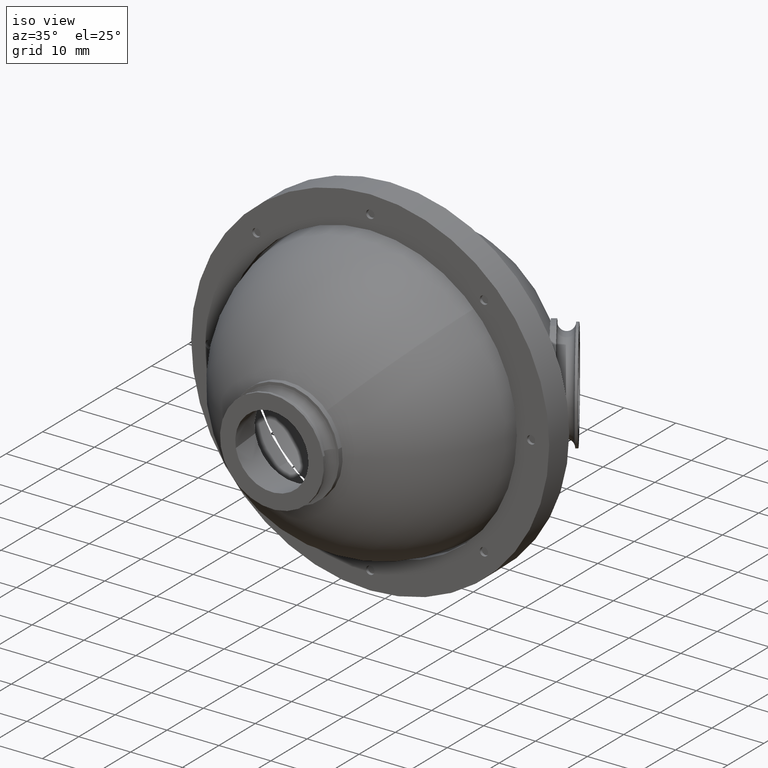
[diagram: clean part render]
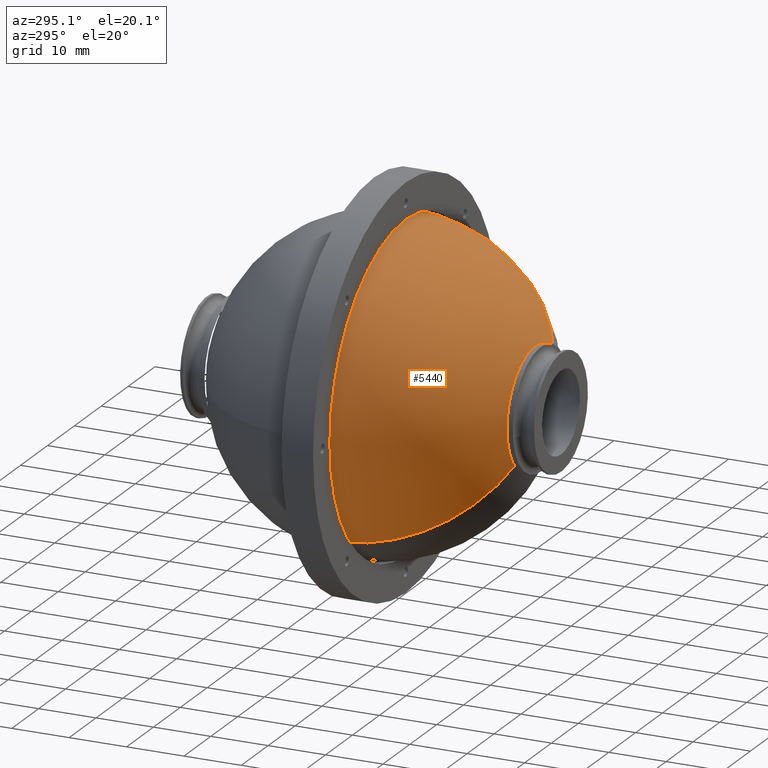
[diagram: tour spotlight — one face highlighted and labeled with its STEP entity id]
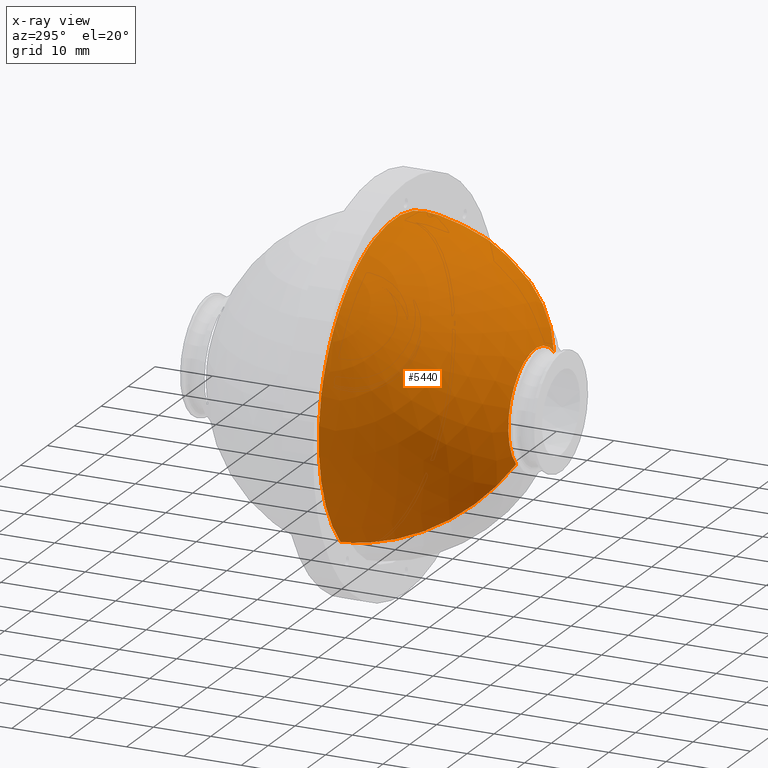
[diagram: x-ray of the same camera — body ghosted, this tour face saturated]
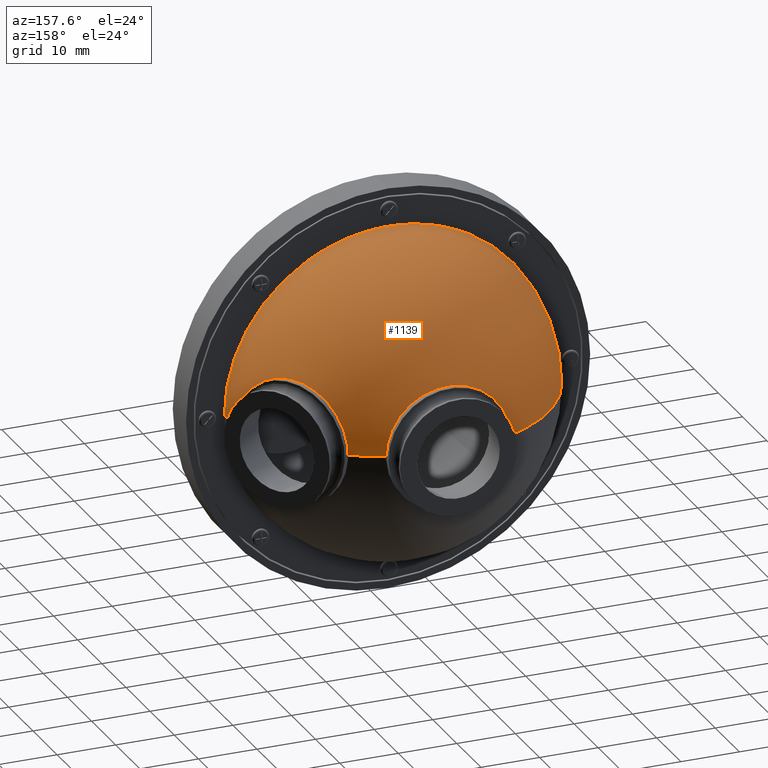
[diagram: tour spotlight — one face highlighted and labeled with its STEP entity id]
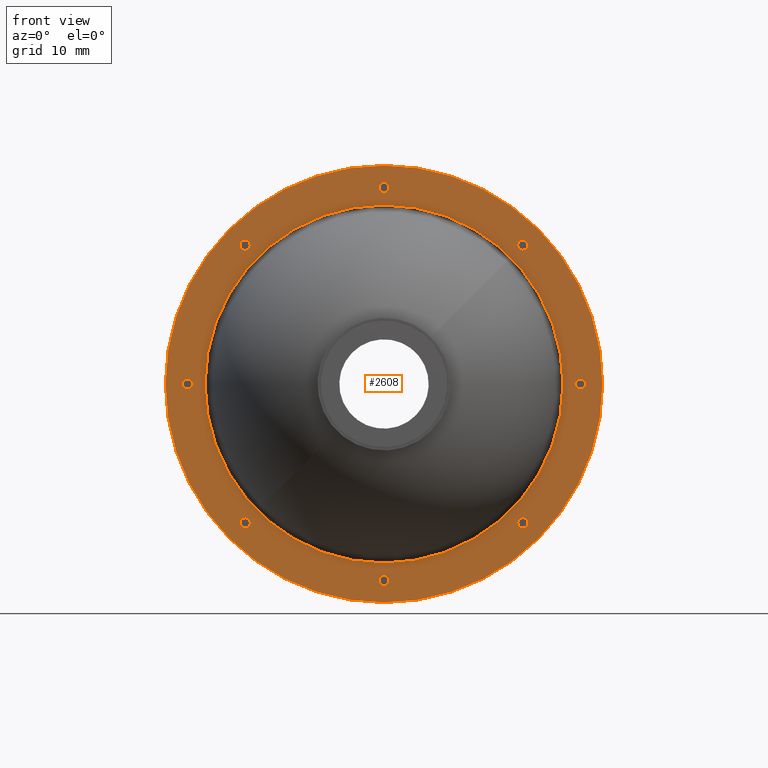
[diagram: tour spotlight — one face highlighted and labeled with its STEP entity id]
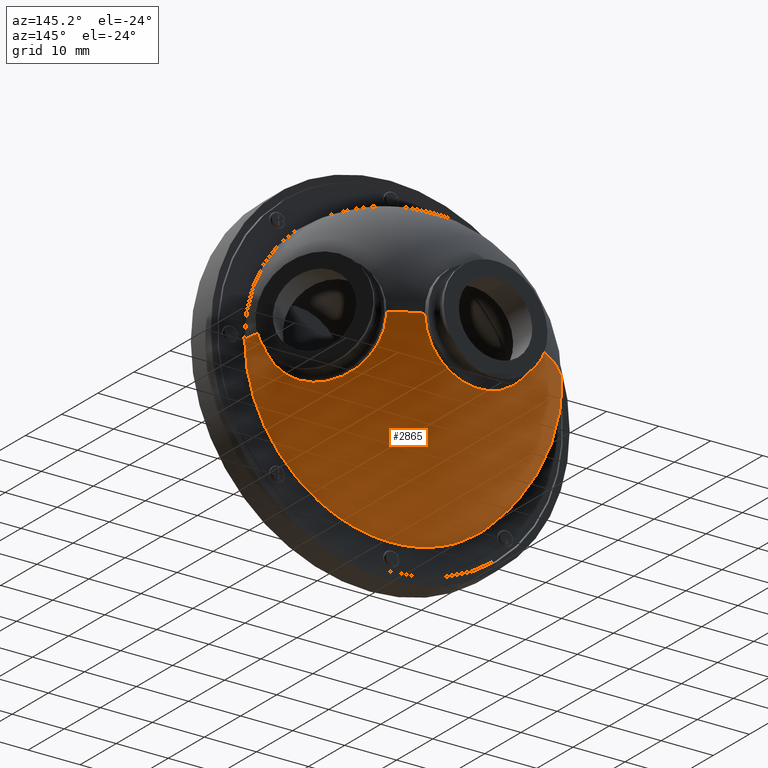
[diagram: tour spotlight — one face highlighted and labeled with its STEP entity id]
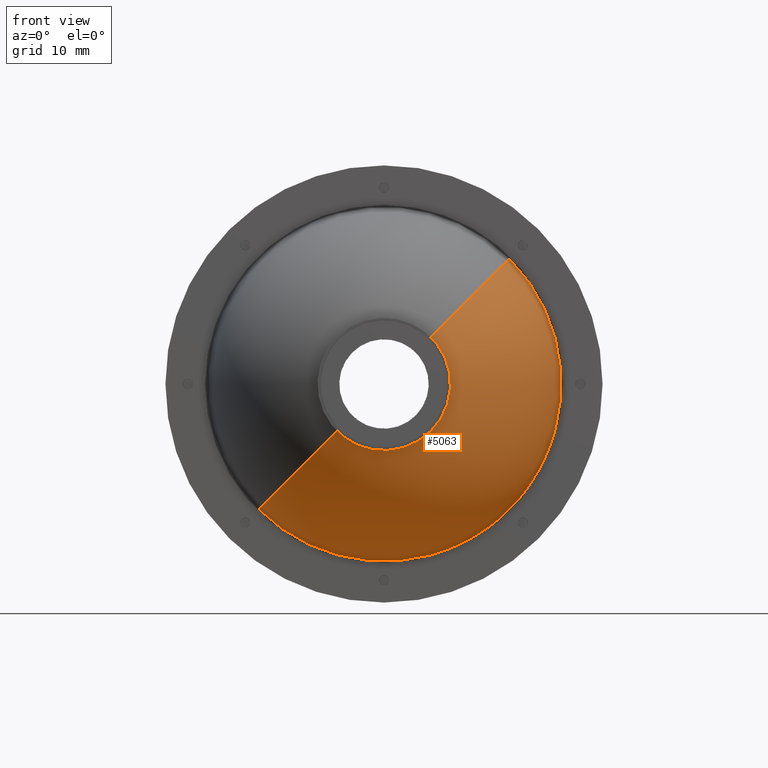
[diagram: tour spotlight — one face highlighted and labeled with its STEP entity id]
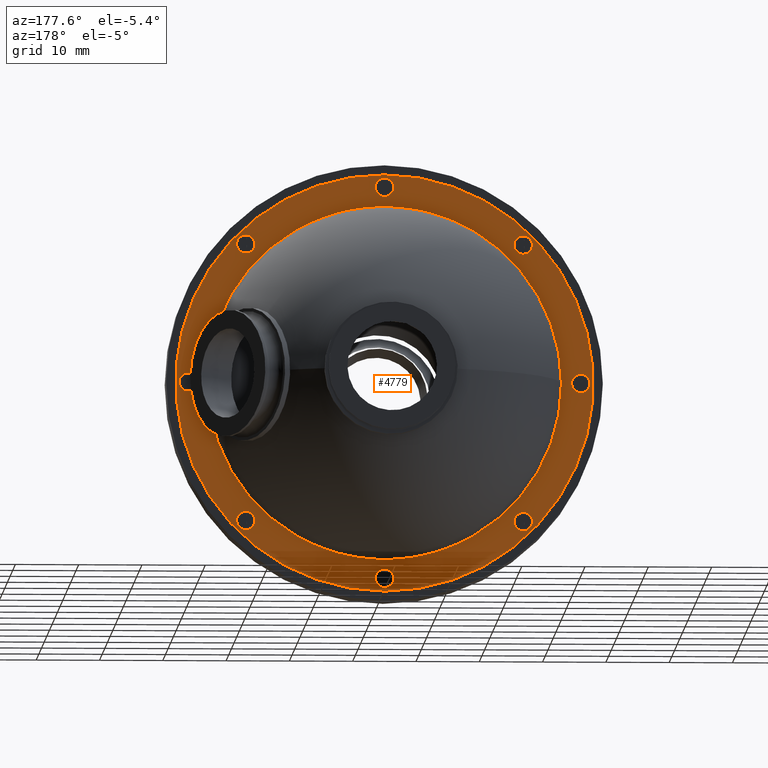
[diagram: tour spotlight — one face highlighted and labeled with its STEP entity id]
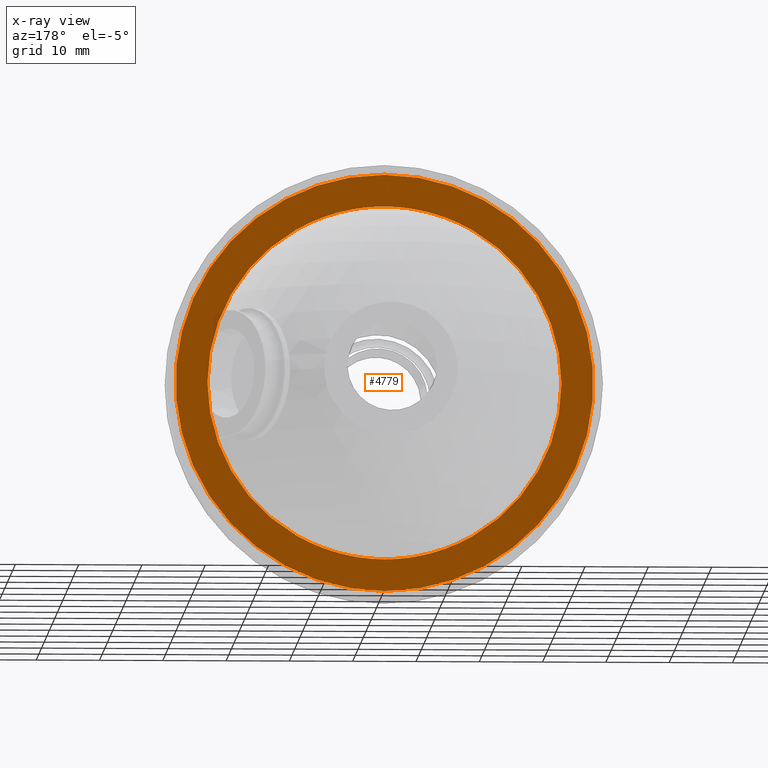
[diagram: x-ray of the same camera — body ghosted, this tour face saturated]
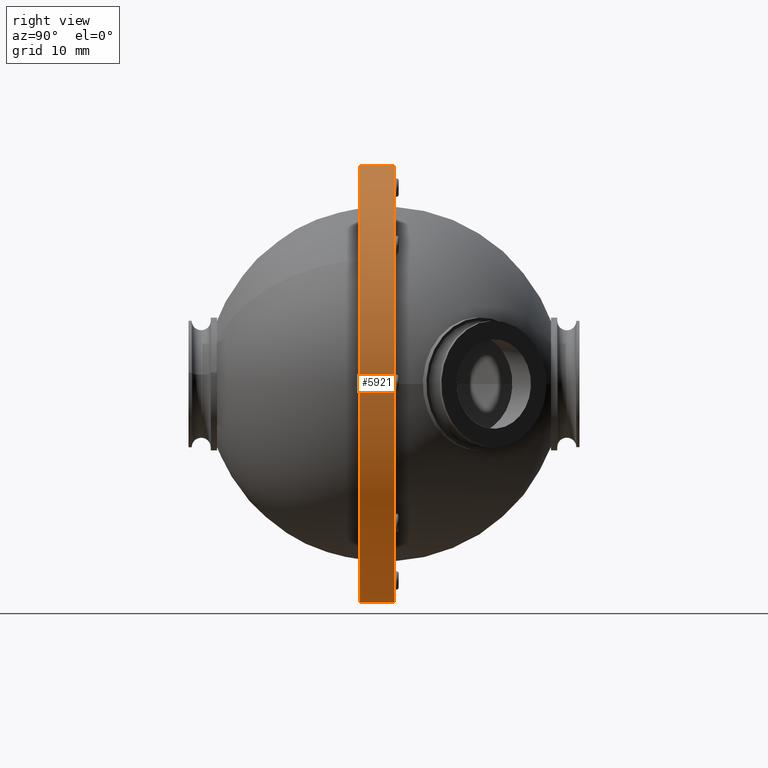
[diagram: tour spotlight — one face highlighted and labeled with its STEP entity id]
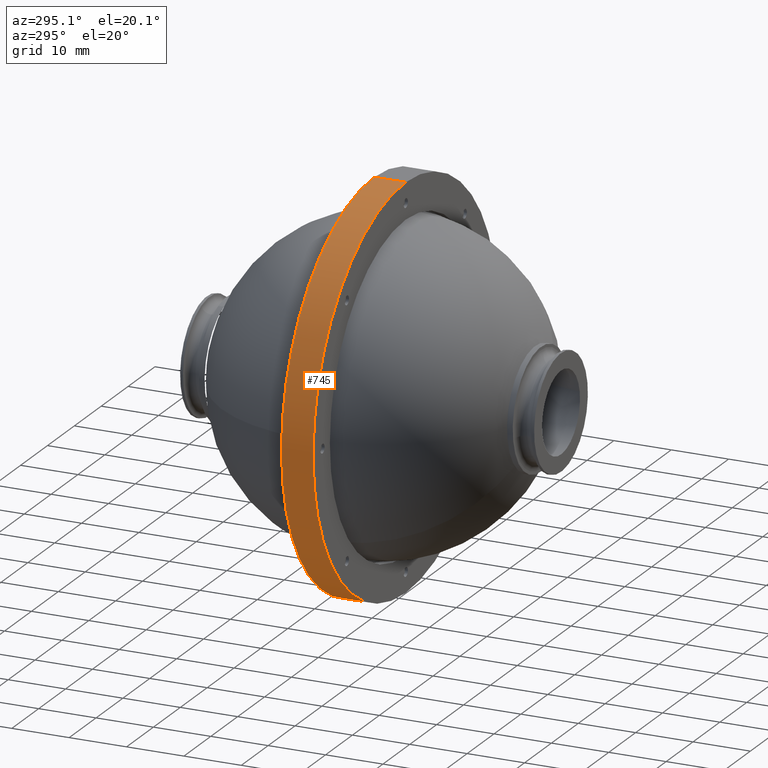
[diagram: tour spotlight — one face highlighted and labeled with its STEP entity id]
A machine part: a face-by-face anatomy tour. The part has 182 B-rep faces; the first image is the clean iso view, then the 8 largest visible faces are spotlighted one at a time (largest first), each with its STEP entity span.

Face 1 — auxiliary view, entity #5440. An x-ray twin of the same camera follows (body ghosted, this face saturated) — the face is partly hidden behind the body. In plain terms, the highlighted spherical surface has radius 28 mm.
Definition (entity closure, byte-faithful):
#136 = EDGE_CURVE ( 'NONE', #1380, #5719, #6012, .T. ) ;
#667 = DIRECTION ( 'NONE',  ( 0.7071067811865585639, 0.000000000000000000, -0.7071067811865364705 ) ) ;
#694 = VERTEX_POINT ( 'NONE', #4148 ) ;
#698 = DIRECTION ( 'NONE',  ( 0.7071067811865587860, 0.000000000000000000, -0.7071067811865364705 ) ) ;
#704 = DIRECTION ( 'NONE',  ( 0.7071067811865364705, 0.000000000000000000, 0.7071067811865585639 ) ) ;
#1380 = VERTEX_POINT ( 'NONE', #3435 ) ;
#1485 = CARTESIAN_POINT ( 'NONE',  ( 1.412951137742937346, -44.46425954842823813, -7.071067811865594521 ) ) ;
#1643 = AXIS2_PLACEMENT_3D ( 'NONE', #2687, #698, #5110 ) ;
#1719 = FACE_OUTER_BOUND ( 'NONE', #3733, .T. ) ;
#1833 = CARTESIAN_POINT ( 'NONE',  ( -11.28653997015892685, -19.81086588718419961, -19.77055891976786128 ) ) ;
#2301 = EDGE_CURVE ( 'NONE', #5719, #2799, #3103, .T. ) ;
#2371 = ORIENTED_EDGE ( 'NONE', *, *, #4375, .T. ) ;
#2550 = CARTESIAN_POINT ( 'NONE',  ( 8.484018949608307381, -44.46425954842823813, 0.000000000000000000 ) ) ;
#2687 = CARTESIAN_POINT ( 'NONE',  ( 8.484018949608307381, -18.31086588718419605, 0.000000000000000000 ) ) ;
#2799 = VERTEX_POINT ( 'NONE', #1833 ) ;
#2983 = ORIENTED_EDGE ( 'NONE', *, *, #2301, .F. ) ;
#3011 = DIRECTION ( 'NONE',  ( -0.7071067811865585639, 0.000000000000000000, 0.7071067811865364705 ) ) ;
#3103 = CIRCLE ( 'NONE', #1643, 28.00000000000000355 ) ;
#3181 = AXIS2_PLACEMENT_3D ( 'NONE', #2550, #5540, #3011 ) ;
#3182 = SPHERICAL_SURFACE ( 'NONE', #4537, 28.00000000000000000 ) ;
#3435 = CARTESIAN_POINT ( 'NONE',  ( 15.55508676147367986, -44.46425954842823813, 7.071067811865592745 ) ) ;
#3622 = CARTESIAN_POINT ( 'NONE',  ( 8.484018949608307381, -18.31086588718419605, 0.000000000000000000 ) ) ;
#3733 = EDGE_LOOP ( 'NONE', ( #2983, #6061, #2371, #6111 ) ) ;
#4089 = CARTESIAN_POINT ( 'NONE',  ( 8.484018949608307381, -19.81086588718419961, 0.000000000000000000 ) ) ;
#4120 = DIRECTION ( 'NONE',  ( -0.000000000000000000, -1.000000000000000000, -0.000000000000000000 ) ) ;
#4148 = CARTESIAN_POINT ( 'NONE',  ( 28.25457786937554516, -19.81086588718419961, 19.77055891976785773 ) ) ;
#4375 = EDGE_CURVE ( 'NONE', #1380, #694, #5183, .T. ) ;
#4537 = AXIS2_PLACEMENT_3D ( 'NONE', #5185, #667, #704 ) ;
#5078 = DIRECTION ( 'NONE',  ( -0.7071067811865585639, 0.000000000000000000, 0.7071067811865364705 ) ) ;
#5110 = DIRECTION ( 'NONE',  ( -0.7071067811865363595, 0.000000000000000000, -0.7071067811865586750 ) ) ;
#5183 = CIRCLE ( 'NONE', #6023, 28.00000000000000355 ) ;
#5185 = CARTESIAN_POINT ( 'NONE',  ( 8.484018949608307381, -18.31086588718419605, 0.000000000000000000 ) ) ;
#5440 = ADVANCED_FACE ( 'NONE', ( #1719 ), #3182, .T. ) ;
#5540 = DIRECTION ( 'NONE',  ( 0.000000000000000000, -1.000000000000000000, -0.000000000000000000 ) ) ;
#5624 = DIRECTION ( 'NONE',  ( -0.7071067811865586750, -0.000000000000000000, 0.7071067811865365815 ) ) ;
#5689 = DIRECTION ( 'NONE',  ( 0.7071067811865364705, 0.000000000000000000, 0.7071067811865585639 ) ) ;
#5719 = VERTEX_POINT ( 'NONE', #1485 ) ;
#5839 = EDGE_CURVE ( 'NONE', #694, #2799, #5850, .T. ) ;
#5850 = CIRCLE ( 'NONE', #6367, 27.95979256003163371 ) ;
#6012 = CIRCLE ( 'NONE', #3181, 10.00000000000000178 ) ;
#6023 = AXIS2_PLACEMENT_3D ( 'NONE', #3622, #5624, #5689 ) ;
#6061 = ORIENTED_EDGE ( 'NONE', *, *, #136, .F. ) ;
#6111 = ORIENTED_EDGE ( 'NONE', *, *, #5839, .T. ) ;
#6367 = AXIS2_PLACEMENT_3D ( 'NONE', #4089, #4120, #5078 ) ;

Face 2 — auxiliary view, entity #1139. In plain terms, the highlighted spherical surface has radius 28 mm.
Definition (entity closure, byte-faithful):
#87 = DIRECTION ( 'NONE',  ( 0.000000000000000000, 0.000000000000000000, -1.000000000000000000 ) ) ;
#105 = VERTEX_POINT ( 'NONE', #4702 ) ;
#173 = CARTESIAN_POINT ( 'NONE',  ( -1.515981050391789209, 8.242527774059805523, 2.324366922747028344E-15 ) ) ;
#213 = DIRECTION ( 'NONE',  ( 1.000000000000000000, 3.816391647148976397E-15, 0.000000000000000000 ) ) ;
#344 = VERTEX_POINT ( 'NONE', #173 ) ;
#420 = AXIS2_PLACEMENT_3D ( 'NONE', #5970, #5546, #5046 ) ;
#440 = CARTESIAN_POINT ( 'NONE',  ( 8.484018949608307381, -17.91086588718419748, 0.000000000000000000 ) ) ;
#624 = AXIS2_PLACEMENT_3D ( 'NONE', #2069, #6070, #1097 ) ;
#717 = CIRCLE ( 'NONE', #4372, 9.999999999999998224 ) ;
#821 = CARTESIAN_POINT ( 'NONE',  ( 36.44381150963993576, -16.41086588718419748, 0.000000000000000000 ) ) ;
#910 = CIRCLE ( 'NONE', #5721, 28.00000000000000000 ) ;
#934 = CIRCLE ( 'NONE', #624, 28.00000000000000000 ) ;
#1033 = CARTESIAN_POINT ( 'NONE',  ( 8.484018949608307381, -17.91086588718419748, 0.000000000000000000 ) ) ;
#1088 = VERTEX_POINT ( 'NONE', #2686 ) ;
#1097 = DIRECTION ( 'NONE',  ( 1.000000000000000000, 0.000000000000000000, -1.224646799147353207E-16 ) ) ;
#1139 = ADVANCED_FACE ( 'NONE', ( #5605 ), #1224, .T. ) ;
#1224 = SPHERICAL_SURFACE ( 'NONE', #3484, 28.00000000000000000 ) ;
#1592 = DIRECTION ( 'NONE',  ( -1.000000000000000000, 0.000000000000000000, 0.000000000000000000 ) ) ;
#1770 = EDGE_CURVE ( 'NONE', #2765, #2809, #3311, .T. ) ;
#2011 = EDGE_CURVE ( 'NONE', #1088, #6447, #910, .T. ) ;
#2069 = CARTESIAN_POINT ( 'NONE',  ( 8.484018949608307381, -17.91086588718419748, 0.000000000000000000 ) ) ;
#2070 = CIRCLE ( 'NONE', #2382, 27.95979256003163016 ) ;
#2271 = AXIS2_PLACEMENT_3D ( 'NONE', #1033, #87, #1592 ) ;
#2303 = DIRECTION ( 'NONE',  ( -1.000000000000000000, 0.000000000000000000, 0.000000000000000000 ) ) ;
#2382 = AXIS2_PLACEMENT_3D ( 'NONE', #2425, #4520, #2457 ) ;
#2399 = CIRCLE ( 'NONE', #420, 10.00000000000000000 ) ;
#2425 = CARTESIAN_POINT ( 'NONE',  ( 8.484018949608307381, -16.41086588718419748, 0.000000000000000000 ) ) ;
#2426 = DIRECTION ( 'NONE',  ( 0.000000000000000000, 0.000000000000000000, -1.000000000000000000 ) ) ;
#2457 = DIRECTION ( 'NONE',  ( 0.000000000000000000, 0.000000000000000000, -1.000000000000000000 ) ) ;
#2686 = CARTESIAN_POINT ( 'NONE',  ( 35.75809397930994038, -11.57644947569009020, 0.000000000000000000 ) ) ;
#2765 = VERTEX_POINT ( 'NONE', #2902 ) ;
#2809 = VERTEX_POINT ( 'NONE', #5866 ) ;
#2828 = ORIENTED_EDGE ( 'NONE', *, *, #5745, .T. ) ;
#2902 = CARTESIAN_POINT ( 'NONE',  ( 18.48401894960820968, 8.242527774059881907, 0.000000000000000000 ) ) ;
#3310 = EDGE_CURVE ( 'NONE', #344, #105, #934, .T. ) ;
#3311 = CIRCLE ( 'NONE', #2271, 28.00000000000000000 ) ;
#3393 = EDGE_CURVE ( 'NONE', #2809, #1088, #2399, .T. ) ;
#3484 = AXIS2_PLACEMENT_3D ( 'NONE', #3739, #4121, #5108 ) ;
#3606 = DIRECTION ( 'NONE',  ( 3.736410698672603652E-15, -1.000000000000000000, -0.000000000000000000 ) ) ;
#3635 = CARTESIAN_POINT ( 'NONE',  ( 8.484018949608211457, 8.242527774059842827, 0.000000000000000000 ) ) ;
#3739 = CARTESIAN_POINT ( 'NONE',  ( 8.484018949608307381, -17.91086588718419748, 0.000000000000000000 ) ) ;
#4121 = DIRECTION ( 'NONE',  ( 0.000000000000000000, 0.000000000000000000, 1.000000000000000000 ) ) ;
#4372 = AXIS2_PLACEMENT_3D ( 'NONE', #3635, #3606, #213 ) ;
#4520 = DIRECTION ( 'NONE',  ( -0.000000000000000000, 1.000000000000000000, -0.000000000000000000 ) ) ;
#4598 = ORIENTED_EDGE ( 'NONE', *, *, #2011, .F. ) ;
#4702 = CARTESIAN_POINT ( 'NONE',  ( -19.47577361042331745, -16.41086588718419748, 3.424087046346671680E-15 ) ) ;
#4822 = ORIENTED_EDGE ( 'NONE', *, *, #5877, .T. ) ;
#5006 = ORIENTED_EDGE ( 'NONE', *, *, #1770, .F. ) ;
#5046 = DIRECTION ( 'NONE',  ( 0.5591929034707482371, -0.8290375725550406250, 0.000000000000000000 ) ) ;
#5108 = DIRECTION ( 'NONE',  ( 1.000000000000000000, 0.000000000000000000, 0.000000000000000000 ) ) ;
#5208 = ORIENTED_EDGE ( 'NONE', *, *, #3393, .F. ) ;
#5350 = EDGE_LOOP ( 'NONE', ( #4822, #5876, #2828, #4598, #5208, #5006 ) ) ;
#5546 = DIRECTION ( 'NONE',  ( 0.8290375725550408470, 0.5591929034707481261, 0.000000000000000000 ) ) ;
#5605 = FACE_OUTER_BOUND ( 'NONE', #5350, .T. ) ;
#5721 = AXIS2_PLACEMENT_3D ( 'NONE', #440, #2426, #2303 ) ;
#5745 = EDGE_CURVE ( 'NONE', #105, #6447, #2070, .T. ) ;
#5866 = CARTESIAN_POINT ( 'NONE',  ( 24.57423590989497697, 5.004301975410723635, 0.000000000000000000 ) ) ;
#5876 = ORIENTED_EDGE ( 'NONE', *, *, #3310, .T. ) ;
#5877 = EDGE_CURVE ( 'NONE', #2765, #344, #717, .T. ) ;
#5970 = CARTESIAN_POINT ( 'NONE',  ( 30.16616494460246045, -3.286073750139683280, 0.000000000000000000 ) ) ;
#6070 = DIRECTION ( 'NONE',  ( 1.224646799147353207E-16, -0.000000000000000000, 1.000000000000000000 ) ) ;
#6447 = VERTEX_POINT ( 'NONE', #821 ) ;

Face 3 — front view, entity #2608. In plain terms, the highlighted planar face has unit normal (0, 1, 0).
Definition (entity closure, byte-faithful):
#9 = FACE_BOUND ( 'NONE', #3206, .T. ) ;
#99 = CIRCLE ( 'NONE', #2497, 0.7999999999999986011 ) ;
#115 = VERTEX_POINT ( 'NONE', #2803 ) ;
#134 = PLANE ( 'NONE',  #2800 ) ;
#148 = AXIS2_PLACEMENT_3D ( 'NONE', #5825, #1860, #4278 ) ;
#168 = DIRECTION ( 'NONE',  ( 0.000000000000000000, 1.000000000000000000, 0.000000000000000000 ) ) ;
#233 = CARTESIAN_POINT ( 'NONE',  ( -13.43629126717478250, -21.91086588718419748, 21.12031021678285825 ) ) ;
#266 = VERTEX_POINT ( 'NONE', #6195 ) ;
#267 = CARTESIAN_POINT ( 'NONE',  ( -22.51598105039169084, -21.91086588718419748, -2.164719683887816881E-13 ) ) ;
#273 = ORIENTED_EDGE ( 'NONE', *, *, #6121, .T. ) ;
#318 = EDGE_CURVE ( 'NONE', #2943, #2717, #5816, .T. ) ;
#329 = CARTESIAN_POINT ( 'NONE',  ( -22.51598105039169084, -21.91086588718419748, -2.164719683887816881E-13 ) ) ;
#339 = ORIENTED_EDGE ( 'NONE', *, *, #3278, .F. ) ;
#402 = VERTEX_POINT ( 'NONE', #6127 ) ;
#462 = FACE_BOUND ( 'NONE', #4297, .T. ) ;
#482 = EDGE_CURVE ( 'NONE', #979, #266, #1644, .T. ) ;
#607 = EDGE_CURVE ( 'NONE', #3018, #2976, #3936, .T. ) ;
#670 = DIRECTION ( 'NONE',  ( 0.000000000000000000, 0.000000000000000000, 1.000000000000000000 ) ) ;
#689 = CARTESIAN_POINT ( 'NONE',  ( 39.48401894960830560, -21.91086588718419748, 0.7999999999999986011 ) ) ;
#729 = CARTESIAN_POINT ( 'NONE',  ( 39.48401894960830560, -21.91086588718419748, 0.000000000000000000 ) ) ;
#748 = EDGE_CURVE ( 'NONE', #115, #2461, #4681, .T. ) ;
#780 = ORIENTED_EDGE ( 'NONE', *, *, #4513, .T. ) ;
#788 = AXIS2_PLACEMENT_3D ( 'NONE', #3613, #5610, #1132 ) ;
#819 = AXIS2_PLACEMENT_3D ( 'NONE', #6151, #3131, #5594 ) ;
#836 = ORIENTED_EDGE ( 'NONE', *, *, #5515, .T. ) ;
#882 = EDGE_CURVE ( 'NONE', #402, #3366, #968, .T. ) ;
#929 = ORIENTED_EDGE ( 'NONE', *, *, #989, .F. ) ;
#968 = CIRCLE ( 'NONE', #3270, 0.7999999999999986011 ) ;
#979 = VERTEX_POINT ( 'NONE', #5150 ) ;
#989 = EDGE_CURVE ( 'NONE', #4110, #5650, #2006, .T. ) ;
#1042 = ORIENTED_EDGE ( 'NONE', *, *, #4049, .T. ) ;
#1073 = DIRECTION ( 'NONE',  ( 0.000000000000000000, 1.000000000000000000, 0.000000000000000000 ) ) ;
#1127 = CARTESIAN_POINT ( 'NONE',  ( -22.51598105039169084, -21.91086588718419748, -0.8000000000002150946 ) ) ;
#1132 = DIRECTION ( 'NONE',  ( 0.000000000000000000, 0.000000000000000000, 1.000000000000000000 ) ) ;
#1141 = CARTESIAN_POINT ( 'NONE',  ( 30.40432916639154826, -21.91086588718419748, -22.72031021678270335 ) ) ;
#1168 = CARTESIAN_POINT ( 'NONE',  ( -13.43629126717478250, -21.91086588718419748, 22.72031021678285612 ) ) ;
#1246 = AXIS2_PLACEMENT_3D ( 'NONE', #3463, #5899, #2417 ) ;
#1308 = DIRECTION ( 'NONE',  ( 0.000000000000000000, 0.000000000000000000, 1.000000000000000000 ) ) ;
#1335 = AXIS2_PLACEMENT_3D ( 'NONE', #729, #2616, #2721 ) ;
#1344 = EDGE_CURVE ( 'NONE', #4616, #2742, #1920, .T. ) ;
#1364 = CIRCLE ( 'NONE', #6166, 0.8000000000000020428 ) ;
#1448 = FACE_BOUND ( 'NONE', #4843, .T. ) ;
#1468 = DIRECTION ( 'NONE',  ( 0.000000000000000000, 1.000000000000000000, 0.000000000000000000 ) ) ;
#1472 = CARTESIAN_POINT ( 'NONE',  ( 30.40432916639124272, -21.91086588718419748, 21.92031021678301528 ) ) ;
#1488 = CARTESIAN_POINT ( 'NONE',  ( 8.484018949608200799, -21.91086588718419748, 31.00000000000000000 ) ) ;
#1536 = DIRECTION ( 'NONE',  ( 0.000000000000000000, 0.000000000000000000, 1.000000000000000000 ) ) ;
#1644 = CIRCLE ( 'NONE', #3419, 28.24999999999999645 ) ;
#1670 = DIRECTION ( 'NONE',  ( 0.000000000000000000, 0.000000000000000000, 1.000000000000000000 ) ) ;
#1673 = DIRECTION ( 'NONE',  ( 0.000000000000000000, 0.000000000000000000, 1.000000000000000000 ) ) ;
#1689 = ORIENTED_EDGE ( 'NONE', *, *, #607, .T. ) ;
#1740 = CARTESIAN_POINT ( 'NONE',  ( 30.40432916639124272, -21.91086588718419748, 21.92031021678301528 ) ) ;
#1860 = DIRECTION ( 'NONE',  ( 0.000000000000000000, 1.000000000000000000, 0.000000000000000000 ) ) ;
#1864 = DIRECTION ( 'NONE',  ( 0.000000000000000000, 1.000000000000000000, 0.000000000000000000 ) ) ;
#1891 = EDGE_CURVE ( 'NONE', #2453, #3842, #4249, .T. ) ;
#1920 = CIRCLE ( 'NONE', #2764, 0.8000000000000020428 ) ;
#1923 = AXIS2_PLACEMENT_3D ( 'NONE', #2119, #4113, #1670 ) ;
#2006 = CIRCLE ( 'NONE', #2321, 34.49999999999999289 ) ;
#2119 = CARTESIAN_POINT ( 'NONE',  ( -13.43629126717478250, -21.91086588718419748, 21.92031021678285896 ) ) ;
#2127 = EDGE_LOOP ( 'NONE', ( #4508, #1689 ) ) ;
#2160 = ORIENTED_EDGE ( 'NONE', *, *, #6467, .T. ) ;
#2239 = VERTEX_POINT ( 'NONE', #2619 ) ;
#2261 = CARTESIAN_POINT ( 'NONE',  ( 8.484018949608200799, -21.91086588718419748, 31.80000000000000071 ) ) ;
#2304 = EDGE_LOOP ( 'NONE', ( #3072, #3996 ) ) ;
#2321 = AXIS2_PLACEMENT_3D ( 'NONE', #6246, #4170, #5120 ) ;
#2417 = DIRECTION ( 'NONE',  ( 0.000000000000000000, 0.000000000000000000, 1.000000000000000000 ) ) ;
#2433 = CIRCLE ( 'NONE', #4317, 0.7999999999999986011 ) ;
#2450 = FACE_BOUND ( 'NONE', #5511, .T. ) ;
#2453 = VERTEX_POINT ( 'NONE', #3406 ) ;
#2460 = DIRECTION ( 'NONE',  ( 0.000000000000000000, 0.000000000000000000, 1.000000000000000000 ) ) ;
#2461 = VERTEX_POINT ( 'NONE', #5775 ) ;
#2497 = AXIS2_PLACEMENT_3D ( 'NONE', #329, #4309, #3335 ) ;
#2608 = ADVANCED_FACE ( 'NONE', ( #3924, #1448, #9, #462, #3501, #2450, #3956, #5498, #5963, #3465 ), #134, .F. ) ;
#2616 = DIRECTION ( 'NONE',  ( 0.000000000000000000, 1.000000000000000000, 0.000000000000000000 ) ) ;
#2619 = CARTESIAN_POINT ( 'NONE',  ( 30.40432916639124272, -21.91086588718419748, 22.72031021678301244 ) ) ;
#2620 = EDGE_CURVE ( 'NONE', #2976, #3018, #4152, .T. ) ;
#2677 = AXIS2_PLACEMENT_3D ( 'NONE', #3289, #6172, #670 ) ;
#2713 = AXIS2_PLACEMENT_3D ( 'NONE', #4792, #4690, #5642 ) ;
#2717 = VERTEX_POINT ( 'NONE', #689 ) ;
#2719 = ORIENTED_EDGE ( 'NONE', *, *, #4648, .T. ) ;
#2721 = DIRECTION ( 'NONE',  ( 0.000000000000000000, 0.000000000000000000, 1.000000000000000000 ) ) ;
#2742 = VERTEX_POINT ( 'NONE', #2261 ) ;
#2764 = AXIS2_PLACEMENT_3D ( 'NONE', #4969, #4999, #3035 ) ;
#2800 = AXIS2_PLACEMENT_3D ( 'NONE', #6122, #168, #3698 ) ;
#2803 = CARTESIAN_POINT ( 'NONE',  ( -13.43629126717447342, -21.91086588718419748, -22.72031021678316165 ) ) ;
#2812 = CIRCLE ( 'NONE', #1246, 0.7999999999999986011 ) ;
#2885 = CARTESIAN_POINT ( 'NONE',  ( 8.484018949608310933, -21.91086588718419748, 34.49999999999999289 ) ) ;
#2897 = CARTESIAN_POINT ( 'NONE',  ( 8.484018949608200799, -21.91086588718419748, 30.20000000000000284 ) ) ;
#2903 = CARTESIAN_POINT ( 'NONE',  ( 8.484018949608307381, -21.91086588718419748, -34.49999999999999289 ) ) ;
#2928 = CARTESIAN_POINT ( 'NONE',  ( 8.484018949608632454, -21.91086588718419748, -31.00000000000000000 ) ) ;
#2943 = VERTEX_POINT ( 'NONE', #5026 ) ;
#2976 = VERTEX_POINT ( 'NONE', #5555 ) ;
#3007 = EDGE_CURVE ( 'NONE', #2239, #5426, #2433, .T. ) ;
#3017 = DIRECTION ( 'NONE',  ( 0.000000000000000000, 1.000000000000000000, 0.000000000000000000 ) ) ;
#3018 = VERTEX_POINT ( 'NONE', #1141 ) ;
#3035 = DIRECTION ( 'NONE',  ( 0.000000000000000000, 0.000000000000000000, 1.000000000000000000 ) ) ;
#3072 = ORIENTED_EDGE ( 'NONE', *, *, #482, .T. ) ;
#3107 = VERTEX_POINT ( 'NONE', #233 ) ;
#3131 = DIRECTION ( 'NONE',  ( 0.000000000000000000, 1.000000000000000000, 0.000000000000000000 ) ) ;
#3206 = EDGE_LOOP ( 'NONE', ( #273, #4400 ) ) ;
#3270 = AXIS2_PLACEMENT_3D ( 'NONE', #267, #1864, #1308 ) ;
#3275 = DIRECTION ( 'NONE',  ( 0.000000000000000000, 1.000000000000000000, 0.000000000000000000 ) ) ;
#3278 = EDGE_CURVE ( 'NONE', #5650, #4110, #5429, .T. ) ;
#3289 = CARTESIAN_POINT ( 'NONE',  ( 8.484018949608632454, -21.91086588718419748, -31.00000000000000000 ) ) ;
#3335 = DIRECTION ( 'NONE',  ( 0.000000000000000000, 0.000000000000000000, 1.000000000000000000 ) ) ;
#3365 = ORIENTED_EDGE ( 'NONE', *, *, #318, .T. ) ;
#3366 = VERTEX_POINT ( 'NONE', #1127 ) ;
#3406 = CARTESIAN_POINT ( 'NONE',  ( 8.484018949608632454, -21.91086588718419748, -30.20000000000000284 ) ) ;
#3419 = AXIS2_PLACEMENT_3D ( 'NONE', #4316, #3275, #5278 ) ;
#3440 = EDGE_LOOP ( 'NONE', ( #780, #3365 ) ) ;
#3451 = ORIENTED_EDGE ( 'NONE', *, *, #1891, .T. ) ;
#3455 = EDGE_CURVE ( 'NONE', #2742, #4616, #1364, .T. ) ;
#3463 = CARTESIAN_POINT ( 'NONE',  ( -13.43629126717447342, -21.91086588718419748, -21.92031021678316449 ) ) ;
#3465 = FACE_BOUND ( 'NONE', #2304, .T. ) ;
#3496 = EDGE_CURVE ( 'NONE', #266, #979, #5539, .T. ) ;
#3501 = FACE_BOUND ( 'NONE', #3975, .T. ) ;
#3613 = CARTESIAN_POINT ( 'NONE',  ( -13.43629126717478250, -21.91086588718419748, 21.92031021678285896 ) ) ;
#3651 = AXIS2_PLACEMENT_3D ( 'NONE', #4832, #5824, #2460 ) ;
#3662 = DIRECTION ( 'NONE',  ( 0.000000000000000000, 1.000000000000000000, 0.000000000000000000 ) ) ;
#3698 = DIRECTION ( 'NONE',  ( 0.000000000000000000, -0.000000000000000000, 1.000000000000000000 ) ) ;
#3842 = VERTEX_POINT ( 'NONE', #5562 ) ;
#3921 = DIRECTION ( 'NONE',  ( 0.000000000000000000, 1.000000000000000000, 0.000000000000000000 ) ) ;
#3924 = FACE_BOUND ( 'NONE', #2127, .T. ) ;
#3936 = CIRCLE ( 'NONE', #5935, 0.7999999999999986011 ) ;
#3956 = FACE_BOUND ( 'NONE', #4669, .T. ) ;
#3975 = EDGE_LOOP ( 'NONE', ( #4776, #836 ) ) ;
#3996 = ORIENTED_EDGE ( 'NONE', *, *, #3496, .T. ) ;
#4049 = EDGE_CURVE ( 'NONE', #5426, #2239, #6238, .T. ) ;
#4065 = CARTESIAN_POINT ( 'NONE',  ( 30.40432916639124272, -21.91086588718419748, 21.12031021678301457 ) ) ;
#4110 = VERTEX_POINT ( 'NONE', #2903 ) ;
#4113 = DIRECTION ( 'NONE',  ( 0.000000000000000000, 1.000000000000000000, 0.000000000000000000 ) ) ;
#4152 = CIRCLE ( 'NONE', #6144, 0.7999999999999986011 ) ;
#4170 = DIRECTION ( 'NONE',  ( 0.000000000000000000, 1.000000000000000000, 0.000000000000000000 ) ) ;
#4249 = CIRCLE ( 'NONE', #2677, 0.7999999999999986011 ) ;
#4251 = DIRECTION ( 'NONE',  ( 0.000000000000000000, 1.000000000000000000, 0.000000000000000000 ) ) ;
#4278 = DIRECTION ( 'NONE',  ( 0.000000000000000000, 0.000000000000000000, 1.000000000000000000 ) ) ;
#4297 = EDGE_LOOP ( 'NONE', ( #5021, #2160 ) ) ;
#4309 = DIRECTION ( 'NONE',  ( 0.000000000000000000, 1.000000000000000000, 0.000000000000000000 ) ) ;
#4316 = CARTESIAN_POINT ( 'NONE',  ( 8.484018949608307381, -21.91086588718419748, 0.000000000000000000 ) ) ;
#4317 = AXIS2_PLACEMENT_3D ( 'NONE', #1472, #1073, #4900 ) ;
#4400 = ORIENTED_EDGE ( 'NONE', *, *, #748, .T. ) ;
#4508 = ORIENTED_EDGE ( 'NONE', *, *, #2620, .T. ) ;
#4513 = EDGE_CURVE ( 'NONE', #2717, #2943, #5792, .T. ) ;
#4533 = DIRECTION ( 'NONE',  ( 0.000000000000000000, 0.000000000000000000, 1.000000000000000000 ) ) ;
#4560 = EDGE_LOOP ( 'NONE', ( #929, #339 ) ) ;
#4616 = VERTEX_POINT ( 'NONE', #2897 ) ;
#4648 = EDGE_CURVE ( 'NONE', #3842, #2453, #4846, .T. ) ;
#4669 = EDGE_LOOP ( 'NONE', ( #4924, #1042 ) ) ;
#4681 = CIRCLE ( 'NONE', #819, 0.7999999999999986011 ) ;
#4690 = DIRECTION ( 'NONE',  ( 0.000000000000000000, 1.000000000000000000, 0.000000000000000000 ) ) ;
#4714 = CARTESIAN_POINT ( 'NONE',  ( 30.40432916639154826, -21.91086588718419748, -21.92031021678270619 ) ) ;
#4776 = ORIENTED_EDGE ( 'NONE', *, *, #5093, .T. ) ;
#4792 = CARTESIAN_POINT ( 'NONE',  ( 8.484018949608307381, -21.91086588718419748, 0.000000000000000000 ) ) ;
#4832 = CARTESIAN_POINT ( 'NONE',  ( 8.484018949608307381, -21.91086588718419748, 0.000000000000000000 ) ) ;
#4835 = VERTEX_POINT ( 'NONE', #1168 ) ;
#4843 = EDGE_LOOP ( 'NONE', ( #3451, #2719 ) ) ;
#4846 = CIRCLE ( 'NONE', #5155, 0.7999999999999986011 ) ;
#4900 = DIRECTION ( 'NONE',  ( 0.000000000000000000, 0.000000000000000000, 1.000000000000000000 ) ) ;
#4924 = ORIENTED_EDGE ( 'NONE', *, *, #3007, .T. ) ;
#4969 = CARTESIAN_POINT ( 'NONE',  ( 8.484018949608200799, -21.91086588718419748, 31.00000000000000000 ) ) ;
#4999 = DIRECTION ( 'NONE',  ( 0.000000000000000000, 1.000000000000000000, 0.000000000000000000 ) ) ;
#5014 = DIRECTION ( 'NONE',  ( 0.000000000000000000, 0.000000000000000000, 1.000000000000000000 ) ) ;
#5021 = ORIENTED_EDGE ( 'NONE', *, *, #882, .T. ) ;
#5026 = CARTESIAN_POINT ( 'NONE',  ( 39.48401894960830560, -21.91086588718419748, -0.7999999999999986011 ) ) ;
#5029 = ORIENTED_EDGE ( 'NONE', *, *, #3455, .T. ) ;
#5093 = EDGE_CURVE ( 'NONE', #4835, #3107, #5480, .T. ) ;
#5120 = DIRECTION ( 'NONE',  ( 0.000000000000000000, 0.000000000000000000, 1.000000000000000000 ) ) ;
#5150 = CARTESIAN_POINT ( 'NONE',  ( 8.484018949608307381, -21.91086588718419748, -28.24999999999999645 ) ) ;
#5155 = AXIS2_PLACEMENT_3D ( 'NONE', #2928, #1468, #4533 ) ;
#5278 = DIRECTION ( 'NONE',  ( 0.000000000000000000, 0.000000000000000000, 1.000000000000000000 ) ) ;
#5426 = VERTEX_POINT ( 'NONE', #4065 ) ;
#5429 = CIRCLE ( 'NONE', #3651, 34.49999999999999289 ) ;
#5480 = CIRCLE ( 'NONE', #1923, 0.7999999999999986011 ) ;
#5498 = FACE_BOUND ( 'NONE', #3440, .T. ) ;
#5511 = EDGE_LOOP ( 'NONE', ( #5029, #5985 ) ) ;
#5515 = EDGE_CURVE ( 'NONE', #3107, #4835, #6433, .T. ) ;
#5539 = CIRCLE ( 'NONE', #2713, 28.24999999999999645 ) ;
#5555 = CARTESIAN_POINT ( 'NONE',  ( 30.40432916639154826, -21.91086588718419748, -21.12031021678270548 ) ) ;
#5562 = CARTESIAN_POINT ( 'NONE',  ( 8.484018949608632454, -21.91086588718419748, -31.80000000000000071 ) ) ;
#5594 = DIRECTION ( 'NONE',  ( 0.000000000000000000, 0.000000000000000000, 1.000000000000000000 ) ) ;
#5610 = DIRECTION ( 'NONE',  ( 0.000000000000000000, 1.000000000000000000, 0.000000000000000000 ) ) ;
#5642 = DIRECTION ( 'NONE',  ( 0.000000000000000000, 0.000000000000000000, 1.000000000000000000 ) ) ;
#5650 = VERTEX_POINT ( 'NONE', #2885 ) ;
#5775 = CARTESIAN_POINT ( 'NONE',  ( -13.43629126717447342, -21.91086588718419748, -21.12031021678316378 ) ) ;
#5792 = CIRCLE ( 'NONE', #148, 0.7999999999999986011 ) ;
#5816 = CIRCLE ( 'NONE', #1335, 0.7999999999999986011 ) ;
#5824 = DIRECTION ( 'NONE',  ( 0.000000000000000000, 1.000000000000000000, 0.000000000000000000 ) ) ;
#5825 = CARTESIAN_POINT ( 'NONE',  ( 39.48401894960830560, -21.91086588718419748, 0.000000000000000000 ) ) ;
#5899 = DIRECTION ( 'NONE',  ( 0.000000000000000000, 1.000000000000000000, 0.000000000000000000 ) ) ;
#5935 = AXIS2_PLACEMENT_3D ( 'NONE', #6024, #3921, #1536 ) ;
#5963 = FACE_OUTER_BOUND ( 'NONE', #4560, .T. ) ;
#5985 = ORIENTED_EDGE ( 'NONE', *, *, #1344, .T. ) ;
#6016 = AXIS2_PLACEMENT_3D ( 'NONE', #1740, #4251, #6260 ) ;
#6024 = CARTESIAN_POINT ( 'NONE',  ( 30.40432916639154826, -21.91086588718419748, -21.92031021678270619 ) ) ;
#6121 = EDGE_CURVE ( 'NONE', #2461, #115, #2812, .T. ) ;
#6122 = CARTESIAN_POINT ( 'NONE',  ( 8.484018949608307381, -21.91086588718419748, 0.000000000000000000 ) ) ;
#6127 = CARTESIAN_POINT ( 'NONE',  ( -22.51598105039169084, -21.91086588718419748, 0.7999999999997821076 ) ) ;
#6144 = AXIS2_PLACEMENT_3D ( 'NONE', #4714, #3662, #1673 ) ;
#6151 = CARTESIAN_POINT ( 'NONE',  ( -13.43629126717447342, -21.91086588718419748, -21.92031021678316449 ) ) ;
#6166 = AXIS2_PLACEMENT_3D ( 'NONE', #1488, #3017, #5014 ) ;
#6172 = DIRECTION ( 'NONE',  ( 0.000000000000000000, 1.000000000000000000, 0.000000000000000000 ) ) ;
#6195 = CARTESIAN_POINT ( 'NONE',  ( 8.484018949608310933, -21.91086588718419748, 28.24999999999999645 ) ) ;
#6238 = CIRCLE ( 'NONE', #6016, 0.7999999999999986011 ) ;
#6246 = CARTESIAN_POINT ( 'NONE',  ( 8.484018949608307381, -21.91086588718419748, 0.000000000000000000 ) ) ;
#6260 = DIRECTION ( 'NONE',  ( 0.000000000000000000, 0.000000000000000000, 1.000000000000000000 ) ) ;
#6433 = CIRCLE ( 'NONE', #788, 0.7999999999999986011 ) ;
#6467 = EDGE_CURVE ( 'NONE', #3366, #402, #99, .T. ) ;

Face 4 — auxiliary view, entity #2865. In plain terms, the highlighted spherical surface has radius 28 mm.
Definition (entity closure, byte-faithful):
#87 = DIRECTION ( 'NONE',  ( 0.000000000000000000, 0.000000000000000000, -1.000000000000000000 ) ) ;
#105 = VERTEX_POINT ( 'NONE', #4702 ) ;
#173 = CARTESIAN_POINT ( 'NONE',  ( -1.515981050391789209, 8.242527774059805523, 2.324366922747028344E-15 ) ) ;
#270 = CARTESIAN_POINT ( 'NONE',  ( 8.484018949608307381, -17.91086588718419748, 0.000000000000000000 ) ) ;
#344 = VERTEX_POINT ( 'NONE', #173 ) ;
#440 = CARTESIAN_POINT ( 'NONE',  ( 8.484018949608307381, -17.91086588718419748, 0.000000000000000000 ) ) ;
#498 = EDGE_LOOP ( 'NONE', ( #5702, #2184, #2102, #4497, #5601, #2169 ) ) ;
#624 = AXIS2_PLACEMENT_3D ( 'NONE', #2069, #6070, #1097 ) ;
#821 = CARTESIAN_POINT ( 'NONE',  ( 36.44381150963993576, -16.41086588718419748, 0.000000000000000000 ) ) ;
#905 = AXIS2_PLACEMENT_3D ( 'NONE', #3063, #5457, #3458 ) ;
#910 = CIRCLE ( 'NONE', #5721, 28.00000000000000000 ) ;
#934 = CIRCLE ( 'NONE', #624, 28.00000000000000000 ) ;
#938 = CIRCLE ( 'NONE', #6067, 27.95979256003163016 ) ;
#1033 = CARTESIAN_POINT ( 'NONE',  ( 8.484018949608307381, -17.91086588718419748, 0.000000000000000000 ) ) ;
#1088 = VERTEX_POINT ( 'NONE', #2686 ) ;
#1097 = DIRECTION ( 'NONE',  ( 1.000000000000000000, 0.000000000000000000, -1.224646799147353207E-16 ) ) ;
#1311 = FACE_OUTER_BOUND ( 'NONE', #498, .T. ) ;
#1551 = DIRECTION ( 'NONE',  ( 0.5591929034707482371, -0.8290375725550406250, 0.000000000000000000 ) ) ;
#1592 = DIRECTION ( 'NONE',  ( -1.000000000000000000, 0.000000000000000000, 0.000000000000000000 ) ) ;
#1770 = EDGE_CURVE ( 'NONE', #2765, #2809, #3311, .T. ) ;
#1773 = SPHERICAL_SURFACE ( 'NONE', #4934, 28.00000000000000000 ) ;
#2011 = EDGE_CURVE ( 'NONE', #1088, #6447, #910, .T. ) ;
#2069 = CARTESIAN_POINT ( 'NONE',  ( 8.484018949608307381, -17.91086588718419748, 0.000000000000000000 ) ) ;
#2102 = ORIENTED_EDGE ( 'NONE', *, *, #1770, .T. ) ;
#2111 = EDGE_CURVE ( 'NONE', #1088, #2809, #3211, .T. ) ;
#2169 = ORIENTED_EDGE ( 'NONE', *, *, #3692, .T. ) ;
#2184 = ORIENTED_EDGE ( 'NONE', *, *, #4279, .T. ) ;
#2271 = AXIS2_PLACEMENT_3D ( 'NONE', #1033, #87, #1592 ) ;
#2303 = DIRECTION ( 'NONE',  ( -1.000000000000000000, 0.000000000000000000, 0.000000000000000000 ) ) ;
#2426 = DIRECTION ( 'NONE',  ( 0.000000000000000000, 0.000000000000000000, -1.000000000000000000 ) ) ;
#2684 = AXIS2_PLACEMENT_3D ( 'NONE', #4461, #5506, #1551 ) ;
#2686 = CARTESIAN_POINT ( 'NONE',  ( 35.75809397930994038, -11.57644947569009020, 0.000000000000000000 ) ) ;
#2765 = VERTEX_POINT ( 'NONE', #2902 ) ;
#2809 = VERTEX_POINT ( 'NONE', #5866 ) ;
#2853 = CARTESIAN_POINT ( 'NONE',  ( 8.484018949608307381, -16.41086588718419748, 0.000000000000000000 ) ) ;
#2865 = ADVANCED_FACE ( 'NONE', ( #1311 ), #1773, .T. ) ;
#2902 = CARTESIAN_POINT ( 'NONE',  ( 18.48401894960820968, 8.242527774059881907, 0.000000000000000000 ) ) ;
#3063 = CARTESIAN_POINT ( 'NONE',  ( 8.484018949608211457, 8.242527774059842827, 0.000000000000000000 ) ) ;
#3211 = CIRCLE ( 'NONE', #2684, 10.00000000000000000 ) ;
#3269 = DIRECTION ( 'NONE',  ( 1.000000000000000000, 0.000000000000000000, 0.000000000000000000 ) ) ;
#3310 = EDGE_CURVE ( 'NONE', #344, #105, #934, .T. ) ;
#3311 = CIRCLE ( 'NONE', #2271, 28.00000000000000000 ) ;
#3458 = DIRECTION ( 'NONE',  ( 1.000000000000000000, 3.816391647148976397E-15, 0.000000000000000000 ) ) ;
#3692 = EDGE_CURVE ( 'NONE', #6447, #105, #938, .T. ) ;
#4279 = EDGE_CURVE ( 'NONE', #344, #2765, #5820, .T. ) ;
#4420 = DIRECTION ( 'NONE',  ( 0.000000000000000000, 0.000000000000000000, -1.000000000000000000 ) ) ;
#4461 = CARTESIAN_POINT ( 'NONE',  ( 30.16616494460246045, -3.286073750139683280, 0.000000000000000000 ) ) ;
#4497 = ORIENTED_EDGE ( 'NONE', *, *, #2111, .F. ) ;
#4702 = CARTESIAN_POINT ( 'NONE',  ( -19.47577361042331745, -16.41086588718419748, 3.424087046346671680E-15 ) ) ;
#4934 = AXIS2_PLACEMENT_3D ( 'NONE', #270, #5766, #3269 ) ;
#5404 = DIRECTION ( 'NONE',  ( -0.000000000000000000, 1.000000000000000000, -0.000000000000000000 ) ) ;
#5457 = DIRECTION ( 'NONE',  ( 3.736410698672603652E-15, -1.000000000000000000, -0.000000000000000000 ) ) ;
#5506 = DIRECTION ( 'NONE',  ( 0.8290375725550408470, 0.5591929034707481261, 0.000000000000000000 ) ) ;
#5601 = ORIENTED_EDGE ( 'NONE', *, *, #2011, .T. ) ;
#5702 = ORIENTED_EDGE ( 'NONE', *, *, #3310, .F. ) ;
#5721 = AXIS2_PLACEMENT_3D ( 'NONE', #440, #2426, #2303 ) ;
#5766 = DIRECTION ( 'NONE',  ( 0.000000000000000000, 0.000000000000000000, 1.000000000000000000 ) ) ;
#5820 = CIRCLE ( 'NONE', #905, 9.999999999999998224 ) ;
#5866 = CARTESIAN_POINT ( 'NONE',  ( 24.57423590989497697, 5.004301975410723635, 0.000000000000000000 ) ) ;
#6067 = AXIS2_PLACEMENT_3D ( 'NONE', #2853, #5404, #4420 ) ;
#6070 = DIRECTION ( 'NONE',  ( 1.224646799147353207E-16, -0.000000000000000000, 1.000000000000000000 ) ) ;
#6447 = VERTEX_POINT ( 'NONE', #821 ) ;

Face 5 — front view, entity #5063. In plain terms, the highlighted spherical surface has radius 28 mm.
Definition (entity closure, byte-faithful):
#131 = CARTESIAN_POINT ( 'NONE',  ( 8.484018949608307381, -18.31086588718419605, 0.000000000000000000 ) ) ;
#442 = ORIENTED_EDGE ( 'NONE', *, *, #2301, .T. ) ;
#618 = SPHERICAL_SURFACE ( 'NONE', #2128, 28.00000000000000000 ) ;
#694 = VERTEX_POINT ( 'NONE', #4148 ) ;
#698 = DIRECTION ( 'NONE',  ( 0.7071067811865587860, 0.000000000000000000, -0.7071067811865364705 ) ) ;
#1313 = ORIENTED_EDGE ( 'NONE', *, *, #1972, .F. ) ;
#1327 = CARTESIAN_POINT ( 'NONE',  ( 8.484018949608307381, -19.81086588718419961, 0.000000000000000000 ) ) ;
#1380 = VERTEX_POINT ( 'NONE', #3435 ) ;
#1485 = CARTESIAN_POINT ( 'NONE',  ( 1.412951137742937346, -44.46425954842823813, -7.071067811865594521 ) ) ;
#1643 = AXIS2_PLACEMENT_3D ( 'NONE', #2687, #698, #5110 ) ;
#1833 = CARTESIAN_POINT ( 'NONE',  ( -11.28653997015892685, -19.81086588718419961, -19.77055891976786128 ) ) ;
#1970 = AXIS2_PLACEMENT_3D ( 'NONE', #1327, #5320, #3840 ) ;
#1972 = EDGE_CURVE ( 'NONE', #5719, #1380, #5296, .T. ) ;
#2128 = AXIS2_PLACEMENT_3D ( 'NONE', #131, #5529, #6152 ) ;
#2301 = EDGE_CURVE ( 'NONE', #5719, #2799, #3103, .T. ) ;
#2400 = DIRECTION ( 'NONE',  ( 0.000000000000000000, -1.000000000000000000, -0.000000000000000000 ) ) ;
#2687 = CARTESIAN_POINT ( 'NONE',  ( 8.484018949608307381, -18.31086588718419605, 0.000000000000000000 ) ) ;
#2799 = VERTEX_POINT ( 'NONE', #1833 ) ;
#3103 = CIRCLE ( 'NONE', #1643, 28.00000000000000355 ) ;
#3427 = CIRCLE ( 'NONE', #1970, 27.95979256003163371 ) ;
#3435 = CARTESIAN_POINT ( 'NONE',  ( 15.55508676147367986, -44.46425954842823813, 7.071067811865592745 ) ) ;
#3488 = EDGE_LOOP ( 'NONE', ( #1313, #442, #4326, #3566 ) ) ;
#3566 = ORIENTED_EDGE ( 'NONE', *, *, #4375, .F. ) ;
#3622 = CARTESIAN_POINT ( 'NONE',  ( 8.484018949608307381, -18.31086588718419605, 0.000000000000000000 ) ) ;
#3840 = DIRECTION ( 'NONE',  ( -0.7071067811865585639, 0.000000000000000000, 0.7071067811865364705 ) ) ;
#4032 = AXIS2_PLACEMENT_3D ( 'NONE', #4826, #2400, #6305 ) ;
#4078 = FACE_OUTER_BOUND ( 'NONE', #3488, .T. ) ;
#4148 = CARTESIAN_POINT ( 'NONE',  ( 28.25457786937554516, -19.81086588718419961, 19.77055891976785773 ) ) ;
#4326 = ORIENTED_EDGE ( 'NONE', *, *, #5644, .T. ) ;
#4375 = EDGE_CURVE ( 'NONE', #1380, #694, #5183, .T. ) ;
#4826 = CARTESIAN_POINT ( 'NONE',  ( 8.484018949608307381, -44.46425954842823813, 0.000000000000000000 ) ) ;
#5063 = ADVANCED_FACE ( 'NONE', ( #4078 ), #618, .T. ) ;
#5110 = DIRECTION ( 'NONE',  ( -0.7071067811865363595, 0.000000000000000000, -0.7071067811865586750 ) ) ;
#5183 = CIRCLE ( 'NONE', #6023, 28.00000000000000355 ) ;
#5296 = CIRCLE ( 'NONE', #4032, 10.00000000000000178 ) ;
#5320 = DIRECTION ( 'NONE',  ( -0.000000000000000000, -1.000000000000000000, -0.000000000000000000 ) ) ;
#5529 = DIRECTION ( 'NONE',  ( 0.7071067811865585639, 0.000000000000000000, -0.7071067811865364705 ) ) ;
#5624 = DIRECTION ( 'NONE',  ( -0.7071067811865586750, -0.000000000000000000, 0.7071067811865365815 ) ) ;
#5644 = EDGE_CURVE ( 'NONE', #2799, #694, #3427, .T. ) ;
#5689 = DIRECTION ( 'NONE',  ( 0.7071067811865364705, 0.000000000000000000, 0.7071067811865585639 ) ) ;
#5719 = VERTEX_POINT ( 'NONE', #1485 ) ;
#6023 = AXIS2_PLACEMENT_3D ( 'NONE', #3622, #5624, #5689 ) ;
#6152 = DIRECTION ( 'NONE',  ( 0.7071067811865364705, 0.000000000000000000, 0.7071067811865585639 ) ) ;
#6305 = DIRECTION ( 'NONE',  ( -0.7071067811865585639, 0.000000000000000000, 0.7071067811865364705 ) ) ;

Face 6 — auxiliary view, entity #4779. An x-ray twin of the same camera follows (body ghosted, this face saturated) — the face is partly hidden behind the body. In plain terms, the highlighted planar face has unit normal (0, -1, 0).
Definition (entity closure, byte-faithful):
#93 = AXIS2_PLACEMENT_3D ( 'NONE', #2130, #2617, #5139 ) ;
#105 = VERTEX_POINT ( 'NONE', #4702 ) ;
#459 = AXIS2_PLACEMENT_3D ( 'NONE', #4103, #4069, #4597 ) ;
#609 = PLANE ( 'NONE',  #459 ) ;
#821 = CARTESIAN_POINT ( 'NONE',  ( 36.44381150963993576, -16.41086588718419748, 0.000000000000000000 ) ) ;
#938 = CIRCLE ( 'NONE', #6067, 27.95979256003163016 ) ;
#1220 = EDGE_LOOP ( 'NONE', ( #1906, #2595 ) ) ;
#1720 = CIRCLE ( 'NONE', #4428, 33.00000000000000000 ) ;
#1732 = ORIENTED_EDGE ( 'NONE', *, *, #4816, .F. ) ;
#1893 = CARTESIAN_POINT ( 'NONE',  ( 8.484018949608307381, -16.41086588718419748, -33.00000000000000000 ) ) ;
#1906 = ORIENTED_EDGE ( 'NONE', *, *, #3692, .F. ) ;
#2070 = CIRCLE ( 'NONE', #2382, 27.95979256003163016 ) ;
#2077 = FACE_BOUND ( 'NONE', #1220, .T. ) ;
#2130 = CARTESIAN_POINT ( 'NONE',  ( 8.484018949608307381, -16.41086588718419748, 0.000000000000000000 ) ) ;
#2144 = DIRECTION ( 'NONE',  ( 0.000000000000000000, 0.000000000000000000, -1.000000000000000000 ) ) ;
#2209 = VERTEX_POINT ( 'NONE', #2980 ) ;
#2382 = AXIS2_PLACEMENT_3D ( 'NONE', #2425, #4520, #2457 ) ;
#2425 = CARTESIAN_POINT ( 'NONE',  ( 8.484018949608307381, -16.41086588718419748, 0.000000000000000000 ) ) ;
#2457 = DIRECTION ( 'NONE',  ( 0.000000000000000000, 0.000000000000000000, -1.000000000000000000 ) ) ;
#2595 = ORIENTED_EDGE ( 'NONE', *, *, #5745, .F. ) ;
#2617 = DIRECTION ( 'NONE',  ( 0.000000000000000000, -1.000000000000000000, 0.000000000000000000 ) ) ;
#2631 = CARTESIAN_POINT ( 'NONE',  ( 8.484018949608307381, -16.41086588718419748, 0.000000000000000000 ) ) ;
#2754 = VERTEX_POINT ( 'NONE', #1893 ) ;
#2853 = CARTESIAN_POINT ( 'NONE',  ( 8.484018949608307381, -16.41086588718419748, 0.000000000000000000 ) ) ;
#2980 = CARTESIAN_POINT ( 'NONE',  ( 8.484018949608310933, -16.41086588718419748, 33.00000000000000000 ) ) ;
#3090 = FACE_OUTER_BOUND ( 'NONE', #4325, .T. ) ;
#3692 = EDGE_CURVE ( 'NONE', #6447, #105, #938, .T. ) ;
#4069 = DIRECTION ( 'NONE',  ( 0.000000000000000000, -1.000000000000000000, 0.000000000000000000 ) ) ;
#4103 = CARTESIAN_POINT ( 'NONE',  ( 8.484018949608307381, -16.41086588718419748, 0.000000000000000000 ) ) ;
#4325 = EDGE_LOOP ( 'NONE', ( #4444, #1732 ) ) ;
#4420 = DIRECTION ( 'NONE',  ( 0.000000000000000000, 0.000000000000000000, -1.000000000000000000 ) ) ;
#4428 = AXIS2_PLACEMENT_3D ( 'NONE', #2631, #4567, #2144 ) ;
#4444 = ORIENTED_EDGE ( 'NONE', *, *, #5889, .F. ) ;
#4520 = DIRECTION ( 'NONE',  ( -0.000000000000000000, 1.000000000000000000, -0.000000000000000000 ) ) ;
#4567 = DIRECTION ( 'NONE',  ( 0.000000000000000000, -1.000000000000000000, 0.000000000000000000 ) ) ;
#4597 = DIRECTION ( 'NONE',  ( 0.000000000000000000, -0.000000000000000000, -1.000000000000000000 ) ) ;
#4702 = CARTESIAN_POINT ( 'NONE',  ( -19.47577361042331745, -16.41086588718419748, 3.424087046346671680E-15 ) ) ;
#4779 = ADVANCED_FACE ( 'NONE', ( #2077, #3090 ), #609, .F. ) ;
#4816 = EDGE_CURVE ( 'NONE', #2209, #2754, #1720, .T. ) ;
#5139 = DIRECTION ( 'NONE',  ( 0.000000000000000000, 0.000000000000000000, -1.000000000000000000 ) ) ;
#5404 = DIRECTION ( 'NONE',  ( -0.000000000000000000, 1.000000000000000000, -0.000000000000000000 ) ) ;
#5745 = EDGE_CURVE ( 'NONE', #105, #6447, #2070, .T. ) ;
#5889 = EDGE_CURVE ( 'NONE', #2754, #2209, #6049, .T. ) ;
#6049 = CIRCLE ( 'NONE', #93, 33.00000000000000000 ) ;
#6067 = AXIS2_PLACEMENT_3D ( 'NONE', #2853, #5404, #4420 ) ;
#6447 = VERTEX_POINT ( 'NONE', #821 ) ;

Face 7 — right view, entity #5921. In plain terms, the highlighted cylindrical surface (partial cylindrical patch) has radius 34.5 mm, axis along (-0, -1, -0).
Definition (entity closure, byte-faithful):
#28 = ORIENTED_EDGE ( 'NONE', *, *, #1484, .T. ) ;
#313 = AXIS2_PLACEMENT_3D ( 'NONE', #5176, #2683, #5570 ) ;
#1219 = ORIENTED_EDGE ( 'NONE', *, *, #3278, .T. ) ;
#1250 = VERTEX_POINT ( 'NONE', #3345 ) ;
#1270 = LINE ( 'NONE', #5723, #1276 ) ;
#1276 = VECTOR ( 'NONE', #2306, 1000.000000000000000 ) ;
#1484 = EDGE_CURVE ( 'NONE', #1250, #5650, #1270, .T. ) ;
#1569 = ORIENTED_EDGE ( 'NONE', *, *, #3183, .F. ) ;
#2306 = DIRECTION ( 'NONE',  ( -0.000000000000000000, -1.000000000000000000, -0.000000000000000000 ) ) ;
#2460 = DIRECTION ( 'NONE',  ( 0.000000000000000000, 0.000000000000000000, 1.000000000000000000 ) ) ;
#2683 = DIRECTION ( 'NONE',  ( -0.000000000000000000, -1.000000000000000000, -0.000000000000000000 ) ) ;
#2885 = CARTESIAN_POINT ( 'NONE',  ( 8.484018949608310933, -21.91086588718419748, 34.49999999999999289 ) ) ;
#2903 = CARTESIAN_POINT ( 'NONE',  ( 8.484018949608307381, -21.91086588718419748, -34.49999999999999289 ) ) ;
#2974 = VECTOR ( 'NONE', #5135, 1000.000000000000000 ) ;
#3183 = EDGE_CURVE ( 'NONE', #1250, #5114, #6099, .T. ) ;
#3278 = EDGE_CURVE ( 'NONE', #5650, #4110, #5429, .T. ) ;
#3345 = CARTESIAN_POINT ( 'NONE',  ( 8.484018949608310933, -16.41086588718419748, 34.49999999999999289 ) ) ;
#3358 = DIRECTION ( 'NONE',  ( 0.000000000000000000, 1.000000000000000000, 0.000000000000000000 ) ) ;
#3570 = FACE_OUTER_BOUND ( 'NONE', #5491, .T. ) ;
#3651 = AXIS2_PLACEMENT_3D ( 'NONE', #4832, #5824, #2460 ) ;
#3932 = EDGE_CURVE ( 'NONE', #5114, #4110, #4486, .T. ) ;
#3986 = CARTESIAN_POINT ( 'NONE',  ( 8.484018949608307381, -16.41086588718419748, -34.49999999999999289 ) ) ;
#4110 = VERTEX_POINT ( 'NONE', #2903 ) ;
#4304 = DIRECTION ( 'NONE',  ( 0.000000000000000000, 0.000000000000000000, 1.000000000000000000 ) ) ;
#4486 = LINE ( 'NONE', #3986, #2974 ) ;
#4832 = CARTESIAN_POINT ( 'NONE',  ( 8.484018949608307381, -21.91086588718419748, 0.000000000000000000 ) ) ;
#5114 = VERTEX_POINT ( 'NONE', #5627 ) ;
#5135 = DIRECTION ( 'NONE',  ( -0.000000000000000000, -1.000000000000000000, -0.000000000000000000 ) ) ;
#5176 = CARTESIAN_POINT ( 'NONE',  ( 8.484018949608307381, -16.41086588718419748, 0.000000000000000000 ) ) ;
#5429 = CIRCLE ( 'NONE', #3651, 34.49999999999999289 ) ;
#5444 = CARTESIAN_POINT ( 'NONE',  ( 8.484018949608307381, -16.41086588718419748, 0.000000000000000000 ) ) ;
#5491 = EDGE_LOOP ( 'NONE', ( #1569, #28, #1219, #6234 ) ) ;
#5570 = DIRECTION ( 'NONE',  ( 0.000000000000000000, 0.000000000000000000, -1.000000000000000000 ) ) ;
#5627 = CARTESIAN_POINT ( 'NONE',  ( 8.484018949608307381, -16.41086588718419748, -34.49999999999999289 ) ) ;
#5650 = VERTEX_POINT ( 'NONE', #2885 ) ;
#5668 = CYLINDRICAL_SURFACE ( 'NONE', #313, 34.49999999999999289 ) ;
#5723 = CARTESIAN_POINT ( 'NONE',  ( 8.484018949608310933, -16.41086588718419748, 34.49999999999999289 ) ) ;
#5824 = DIRECTION ( 'NONE',  ( 0.000000000000000000, 1.000000000000000000, 0.000000000000000000 ) ) ;
#5921 = ADVANCED_FACE ( 'NONE', ( #3570 ), #5668, .T. ) ;
#6099 = CIRCLE ( 'NONE', #6415, 34.49999999999999289 ) ;
#6234 = ORIENTED_EDGE ( 'NONE', *, *, #3932, .F. ) ;
#6415 = AXIS2_PLACEMENT_3D ( 'NONE', #5444, #3358, #4304 ) ;

Face 8 — auxiliary view, entity #745. In plain terms, the highlighted cylindrical surface (partial cylindrical patch) has radius 34.5 mm, axis along (-0, -1, -0).
Definition (entity closure, byte-faithful):
#45 = AXIS2_PLACEMENT_3D ( 'NONE', #3865, #2267, #797 ) ;
#200 = FACE_OUTER_BOUND ( 'NONE', #4882, .T. ) ;
#645 = CYLINDRICAL_SURFACE ( 'NONE', #1962, 34.49999999999999289 ) ;
#745 = ADVANCED_FACE ( 'NONE', ( #200 ), #645, .T. ) ;
#797 = DIRECTION ( 'NONE',  ( 0.000000000000000000, 0.000000000000000000, 1.000000000000000000 ) ) ;
#989 = EDGE_CURVE ( 'NONE', #4110, #5650, #2006, .T. ) ;
#1248 = EDGE_CURVE ( 'NONE', #5114, #1250, #1818, .T. ) ;
#1250 = VERTEX_POINT ( 'NONE', #3345 ) ;
#1261 = ORIENTED_EDGE ( 'NONE', *, *, #1484, .F. ) ;
#1270 = LINE ( 'NONE', #5723, #1276 ) ;
#1276 = VECTOR ( 'NONE', #2306, 1000.000000000000000 ) ;
#1484 = EDGE_CURVE ( 'NONE', #1250, #5650, #1270, .T. ) ;
#1570 = DIRECTION ( 'NONE',  ( -0.000000000000000000, -1.000000000000000000, -0.000000000000000000 ) ) ;
#1638 = ORIENTED_EDGE ( 'NONE', *, *, #989, .T. ) ;
#1818 = CIRCLE ( 'NONE', #45, 34.49999999999999289 ) ;
#1854 = ORIENTED_EDGE ( 'NONE', *, *, #3932, .T. ) ;
#1962 = AXIS2_PLACEMENT_3D ( 'NONE', #2152, #1570, #2674 ) ;
#2006 = CIRCLE ( 'NONE', #2321, 34.49999999999999289 ) ;
#2152 = CARTESIAN_POINT ( 'NONE',  ( 8.484018949608307381, -16.41086588718419748, 0.000000000000000000 ) ) ;
#2267 = DIRECTION ( 'NONE',  ( 0.000000000000000000, 1.000000000000000000, 0.000000000000000000 ) ) ;
#2306 = DIRECTION ( 'NONE',  ( -0.000000000000000000, -1.000000000000000000, -0.000000000000000000 ) ) ;
#2321 = AXIS2_PLACEMENT_3D ( 'NONE', #6246, #4170, #5120 ) ;
#2674 = DIRECTION ( 'NONE',  ( 0.000000000000000000, 0.000000000000000000, -1.000000000000000000 ) ) ;
#2885 = CARTESIAN_POINT ( 'NONE',  ( 8.484018949608310933, -21.91086588718419748, 34.49999999999999289 ) ) ;
#2903 = CARTESIAN_POINT ( 'NONE',  ( 8.484018949608307381, -21.91086588718419748, -34.49999999999999289 ) ) ;
#2974 = VECTOR ( 'NONE', #5135, 1000.000000000000000 ) ;
#3345 = CARTESIAN_POINT ( 'NONE',  ( 8.484018949608310933, -16.41086588718419748, 34.49999999999999289 ) ) ;
#3865 = CARTESIAN_POINT ( 'NONE',  ( 8.484018949608307381, -16.41086588718419748, 0.000000000000000000 ) ) ;
#3932 = EDGE_CURVE ( 'NONE', #5114, #4110, #4486, .T. ) ;
#3986 = CARTESIAN_POINT ( 'NONE',  ( 8.484018949608307381, -16.41086588718419748, -34.49999999999999289 ) ) ;
#4110 = VERTEX_POINT ( 'NONE', #2903 ) ;
#4170 = DIRECTION ( 'NONE',  ( 0.000000000000000000, 1.000000000000000000, 0.000000000000000000 ) ) ;
#4486 = LINE ( 'NONE', #3986, #2974 ) ;
#4882 = EDGE_LOOP ( 'NONE', ( #1261, #5827, #1854, #1638 ) ) ;
#5114 = VERTEX_POINT ( 'NONE', #5627 ) ;
#5120 = DIRECTION ( 'NONE',  ( 0.000000000000000000, 0.000000000000000000, 1.000000000000000000 ) ) ;
#5135 = DIRECTION ( 'NONE',  ( -0.000000000000000000, -1.000000000000000000, -0.000000000000000000 ) ) ;
#5627 = CARTESIAN_POINT ( 'NONE',  ( 8.484018949608307381, -16.41086588718419748, -34.49999999999999289 ) ) ;
#5650 = VERTEX_POINT ( 'NONE', #2885 ) ;
#5723 = CARTESIAN_POINT ( 'NONE',  ( 8.484018949608310933, -16.41086588718419748, 34.49999999999999289 ) ) ;
#5827 = ORIENTED_EDGE ( 'NONE', *, *, #1248, .F. ) ;
#6246 = CARTESIAN_POINT ( 'NONE',  ( 8.484018949608307381, -21.91086588718419748, 0.000000000000000000 ) ) ;